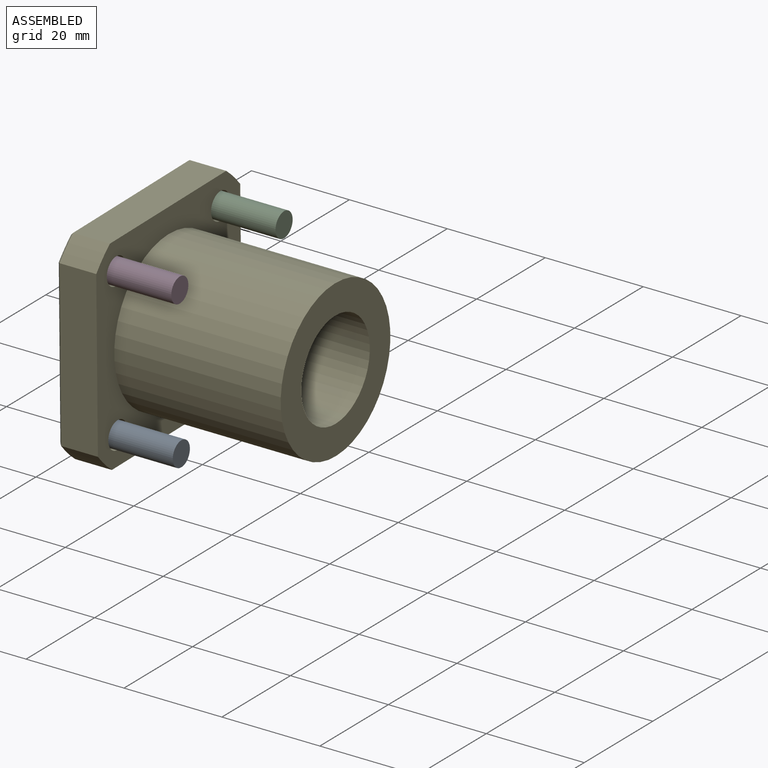
[diagram: assembled view]
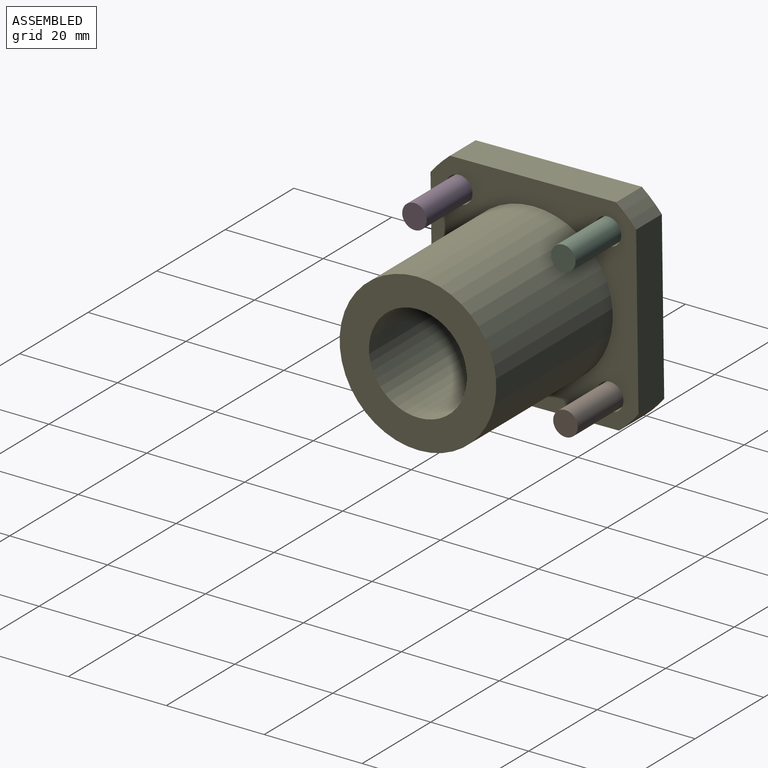
[diagram: assembled view, second angle]
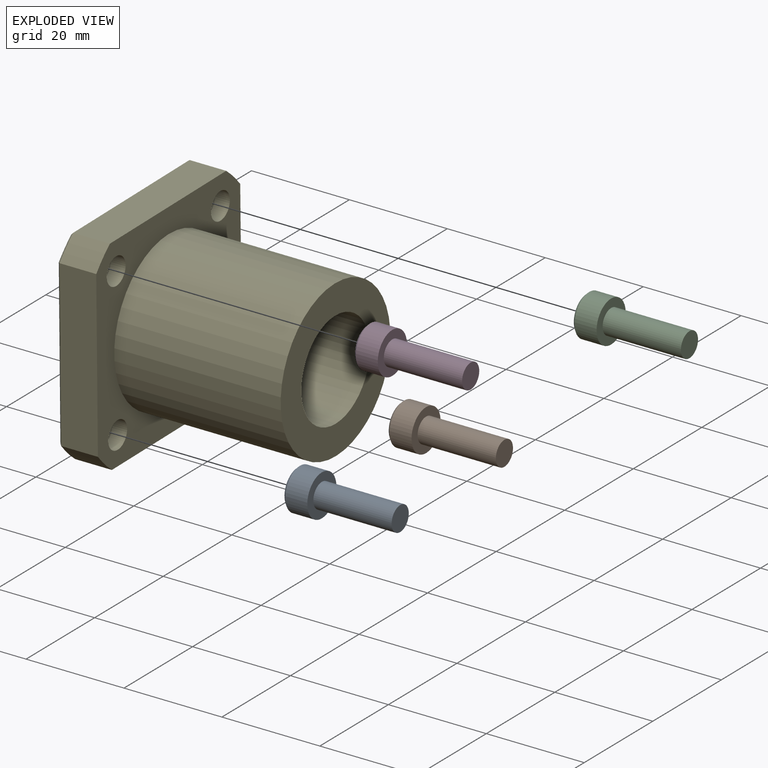
[diagram: exploded view]
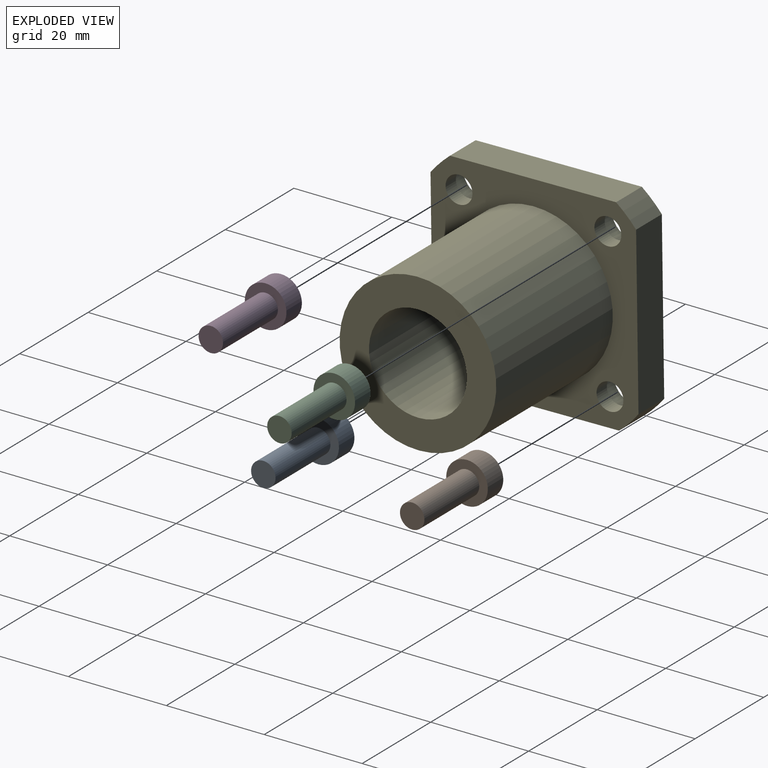
[diagram: exploded view, second angle]
ASSEMBLY  parts=5 mates=4
PART A: 13 faces, bbox 21x8.5x8.5 mm
  f0: cylinder r=4.25mm len=8.5mm, axis (-1,0,0), area 120.2mm2, adj f4,f12
  f1: plane 7.5x7.5mm, normal (-1,0,0), area 30.3mm2, adj f5,f6,f7,f8,f9,f10,f12
  f2: plane 5x5mm, normal (1,0,0), area 19.6mm2, adj f3
  f3: cylinder r=2.5mm len=16mm, axis (-1,0,0), area 251.3mm2, adj f2,f4
  f4: plane 8.5x8.5mm, normal (1,0,0), area 37.1mm2, adj f0,f3
  f5: plane 3x1.81mm, normal (0,0.79,0.62), area 6.9mm2, adj f1,f6,f10,f11
  f6: plane 3x2.15mm, normal (0,0.93,-0.37), area 6.9mm2, adj f1,f5,f7,f11
  f7: plane 3x2.29mm, normal (0,0.14,-0.99), area 6.9mm2, adj f1,f6,f8,f11
  f8: plane 3x1.81mm, normal (0,-0.79,-0.62), area 6.9mm2, adj f1,f7,f9,f11
  f9: plane 3x2.15mm, normal (0,-0.93,0.37), area 6.9mm2, adj f1,f8,f10,f11
  f10: plane 3x2.29mm, normal (0,-0.14,0.99), area 6.9mm2, adj f1,f5,f9,f11
  f11: plane 4.57x4.29mm, normal (-1,0,0), area 13.9mm2, adj f5,f6,f7,f8,f9,f10
  f12: cone r=3.75mm half-angle=45deg, axis (1,0,0), area 17.8mm2, adj f0,f1
PART B: same geometry as A
PART C: same geometry as A
PART D: same geometry as A
PART E: 38 faces, bbox 42x42x42 mm
  f0: cylinder r=27mm len=7.5mm, axis (1,0,0), area 42.8mm2, adj f4,f10,f12,f33
  f1: cylinder r=27mm len=7.5mm, axis (1,0,0), area 42.8mm2, adj f4,f11,f12,f29
  f2: cylinder r=27mm len=7.5mm, axis (1,0,0), area 42.8mm2, adj f4,f9,f11,f32
  f3: plane 41x41mm, normal (-1,0,0), area 994.8mm2, adj f25,f26,f27,f28,f29,f30,f31,f32
  f4: plane 42x42mm, normal (1,0,0), area 834.5mm2, adj f0,f1,f2,f5,f8,f9,f10,f11
  f5: cylinder r=27mm len=7.5mm, axis (1,0,0), area 42.8mm2, adj f4,f9,f10,f36
  f6: cylinder r=10mm len=41.5mm, axis (1,0,0), area 2607.5mm2, adj f7,f37
  f7: plane 32x32mm, normal (1,0,0), area 490.1mm2, adj f6,f8
  f8: cylinder r=16mm len=34mm, axis (1,0,0), area 3418.1mm2, adj f4,f7
  f9: plane 33.94x7.5mm, normal (0,-1,0), area 254.6mm2, adj f2,f4,f5,f34
  f10: plane 33.94x7.5mm, normal (0,0,-1), area 254.6mm2, adj f0,f4,f5,f35
  f11: plane 33.94x7.5mm, normal (0,0,1), area 254.6mm2, adj f1,f2,f4,f30
  f12: plane 33.94x7.5mm, normal (0,1,0), area 254.6mm2, adj f0,f1,f4,f31
  f13: cylinder r=4.5mm len=9mm, axis (-1,0,0), area 127.2mm2, adj f14,f28
  f14: plane 9x9mm, normal (-1,0,0), area 39.9mm2, adj f13,f22
  f15: cylinder r=4.5mm len=9mm, axis (-1,0,0), area 127.2mm2, adj f16,f27
  f16: plane 9x9mm, normal (-1,0,0), area 39.9mm2, adj f15,f24
  f17: cylinder r=4.5mm len=9mm, axis (-1,0,0), area 127.2mm2, adj f18,f26
  f18: plane 9x9mm, normal (-1,0,0), area 39.9mm2, adj f17,f23
  f19: cylinder r=4.5mm len=9mm, axis (-1,0,0), area 127.2mm2, adj f20,f25
  f20: plane 9x9mm, normal (-1,0,0), area 39.9mm2, adj f19,f21
  f21: cylinder r=2.75mm len=5.5mm, axis (-1,0,0), area 51.8mm2, adj f4,f20
  f22: cylinder r=2.75mm len=5.5mm, axis (-1,0,0), area 51.8mm2, adj f4,f14
  f23: cylinder r=2.75mm len=5.5mm, axis (-1,0,0), area 51.8mm2, adj f4,f18
  f24: cylinder r=2.75mm len=5.5mm, axis (-1,0,0), area 51.8mm2, adj f4,f16
  f25: cone r=5mm half-angle=45deg, axis (-1,0,0), area 21.1mm2, adj f3,f19
  f26: cone r=4.5mm half-angle=45deg, axis (-1,0,0), area 21.1mm2, adj f3,f17
  f27: cone r=5mm half-angle=45deg, axis (-1,0,0), area 21.1mm2, adj f3,f15
  f28: cone r=4.5mm half-angle=45deg, axis (-1,0,0), area 21.1mm2, adj f3,f13
  f29: cone r=27mm half-angle=45deg, axis (1,0,0), area 3.9mm2, adj f1,f3,f30,f31
  f30: plane 33.94x0.5mm, normal (-0.71,0,0.71), area 23.9mm2, adj f3,f11,f29,f32
  f31: plane 33.94x0.5mm, normal (-0.71,0.71,0), area 23.9mm2, adj f3,f12,f29,f33
  f32: cone r=27mm half-angle=45deg, axis (1,0,0), area 3.9mm2, adj f2,f3,f30,f34
  f33: cone r=27mm half-angle=45deg, axis (1,0,0), area 3.9mm2, adj f0,f3,f31,f35
  f34: plane 33.94x0.5mm, normal (-0.71,-0.71,0), area 23.9mm2, adj f3,f9,f32,f36
  f35: plane 33.94x0.5mm, normal (-0.71,0,-0.71), area 23.9mm2, adj f3,f10,f33,f36
  f36: cone r=27mm half-angle=45deg, axis (1,0,0), area 3.9mm2, adj f3,f5,f34,f35
  f37: cone r=10.5mm half-angle=45deg, axis (-1,0,0), area 45.5mm2, adj f3,f6
PLACE A rot(axis=(1,0,0),0.8deg) t=(-97.82,-531.87,-109.98)mm
PLACE B rot(axis=(1,0,0),0.8deg) t=(-97.82,-501.47,-109.54)mm
PLACE C rot(axis=(1,0,0),0.8deg) t=(-97.82,-501.9,-79.14)mm
PLACE D rot(axis=(1,0,0),0.8deg) t=(-97.82,-532.3,-79.57)mm
PLACE E rot(axis=(1,0,0),0.8deg) t=(-17.82,-572.59,-381.88)mm
MATE fastened A.f0 <-> E.f15  axis (-1,0,0) through (-92.82,-570.67,-110.53)mm
MATE fastened E.f19 <-> C.f0  axis (-1,0,0) through (-92.82,-540.71,-79.69)mm
MATE fastened B.f0 <-> E.f13  axis (-1,0,0) through (-92.82,-540.27,-110.1)mm
MATE fastened E.f17 <-> D.f0  axis (-1,0,0) through (-92.82,-571.11,-80.13)mm
